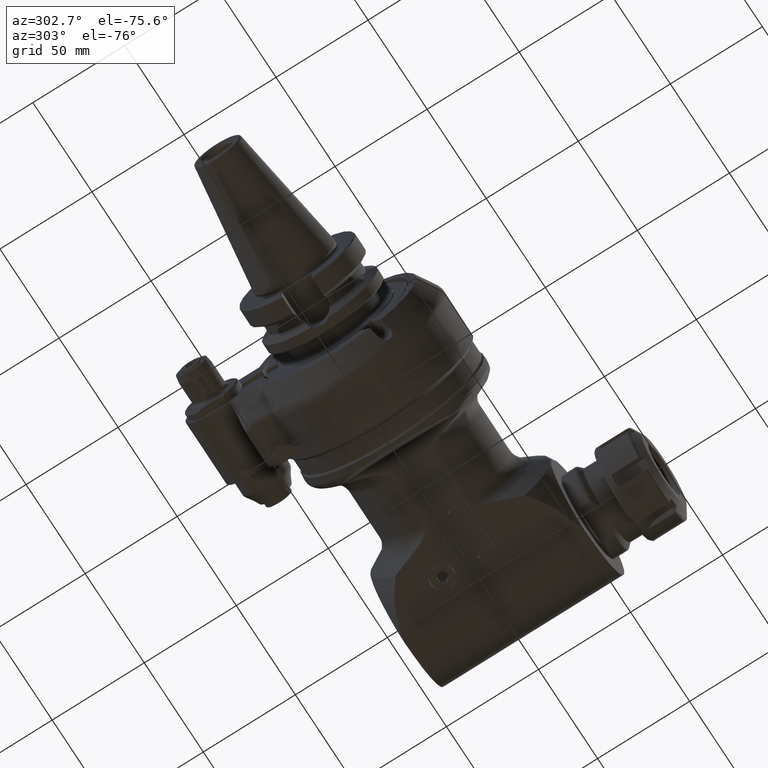
[diagram: clean part render]
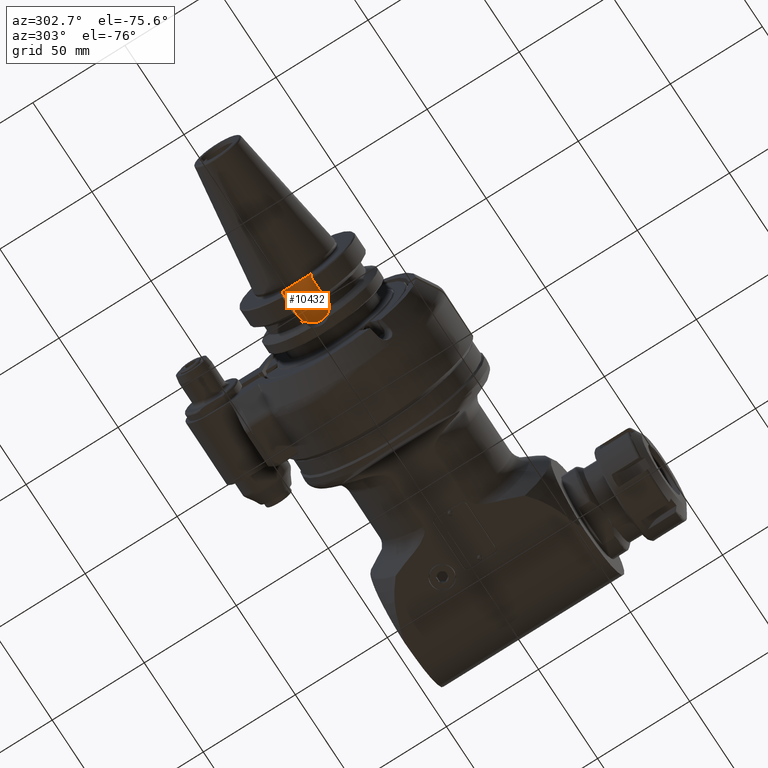
[diagram: same view with one face highlighted and labeled with its STEP entity id]
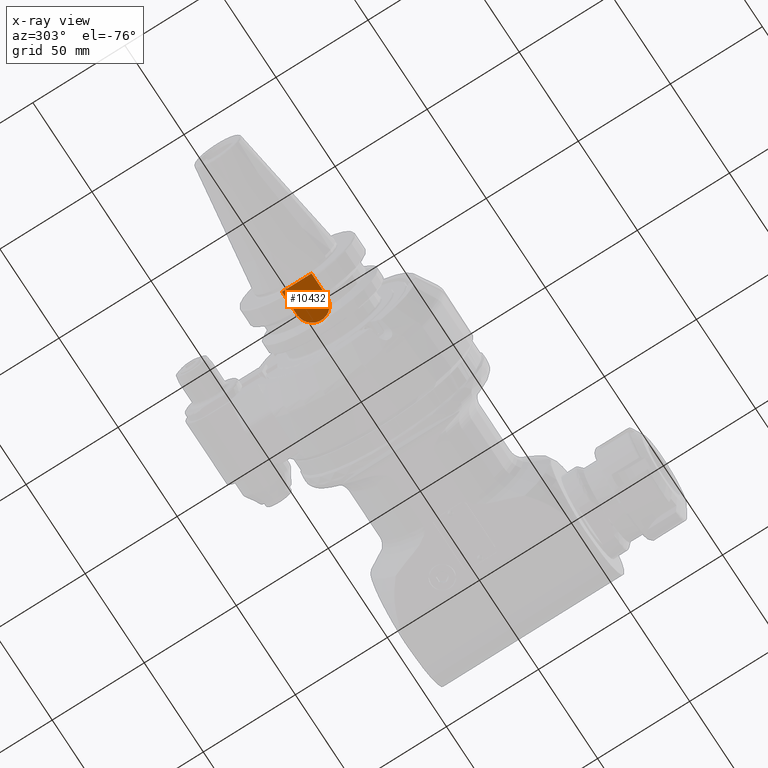
[diagram: x-ray of the same camera — body ghosted, the highlighted face saturated]
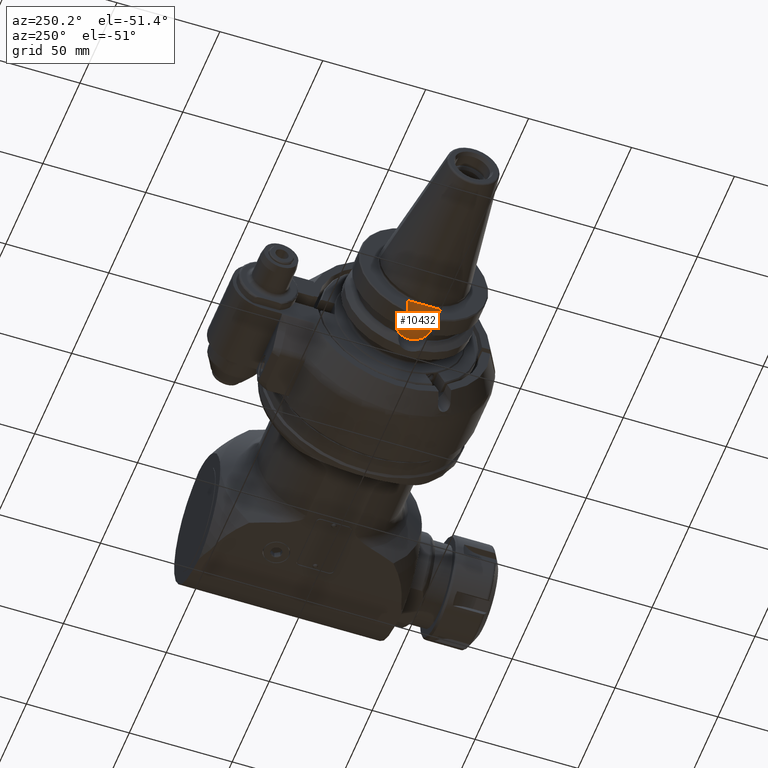
[diagram: same view with one face highlighted and labeled with its STEP entity id]
A machine part, auxiliary view. The second image highlights one B-rep face of the part: STEP entity #10432.
The next image is the same camera in x-ray: the body ghosted, the highlighted face saturated — about 0% of this face is hidden behind the body in this view.
A second angle (auxiliary view) of the same face is appended — the face is thin or edge-on in the first view.
In plain terms, the highlighted planar face has unit normal (0, 0, 1).
Its self-contained STEP definition (entity closure, byte-faithful):
#1350=LINE('',#51996,#2109);
#1372=LINE('',#52468,#2131);
#1373=LINE('',#52472,#2132);
#2109=VECTOR('',#13655,16.1);
#2131=VECTOR('',#13735,12.95);
#2132=VECTOR('',#13740,12.95);
#2800=FACE_OUTER_BOUND('',#3417,.T.);
#3417=EDGE_LOOP('',(#9256,#9257,#9258,#9259));
#3847=CIRCLE('',#11359,8.05);
#4843=VERTEX_POINT('',#51993);
#4844=VERTEX_POINT('',#51995);
#4881=VERTEX_POINT('',#52466);
#4882=VERTEX_POINT('',#52470);
#6315=EDGE_CURVE('',#4844,#4843,#1350,.T.);
#6371=EDGE_CURVE('',#4881,#4843,#1372,.T.);
#6372=EDGE_CURVE('',#4881,#4882,#3847,.T.);
#6373=EDGE_CURVE('',#4882,#4844,#1373,.T.);
#9256=ORIENTED_EDGE('',*,*,#6371,.F.);
#9257=ORIENTED_EDGE('',*,*,#6372,.T.);
#9258=ORIENTED_EDGE('',*,*,#6373,.T.);
#9259=ORIENTED_EDGE('',*,*,#6315,.T.);
#9925=PLANE('',#11358);
#10432=ADVANCED_FACE('',(#2800),#9925,.F.);
#11358=AXIS2_PLACEMENT_3D('',#52469,#13736,#13737);
#11359=AXIS2_PLACEMENT_3D('',#52471,#13738,#13739);
#13655=DIRECTION('',(0.,1.,0.));
#13735=DIRECTION('',(-1.,0.,0.));
#13736=DIRECTION('center_axis',(0.,0.,1.));
#13737=DIRECTION('ref_axis',(1.,0.,0.));
#13738=DIRECTION('center_axis',(0.,0.,-1.));
#13739=DIRECTION('ref_axis',(0.,1.,0.));
#13740=DIRECTION('',(-1.,0.,0.));
#51993=CARTESIAN_POINT('',(-84.,8.05,-22.6));
#51995=CARTESIAN_POINT('',(-84.,-8.05,-22.6));
#51996=CARTESIAN_POINT('',(-84.,-8.05,-22.6));
#52466=CARTESIAN_POINT('',(-71.05,8.05,-22.6));
#52468=CARTESIAN_POINT('',(-71.05,8.05,-22.6));
#52469=CARTESIAN_POINT('Origin',(-73.5,0.,-22.6));
#52470=CARTESIAN_POINT('',(-71.05,-8.05,-22.6));
#52471=CARTESIAN_POINT('Origin',(-71.05,0.,-22.6));
#52472=CARTESIAN_POINT('',(-71.05,-8.05,-22.6));